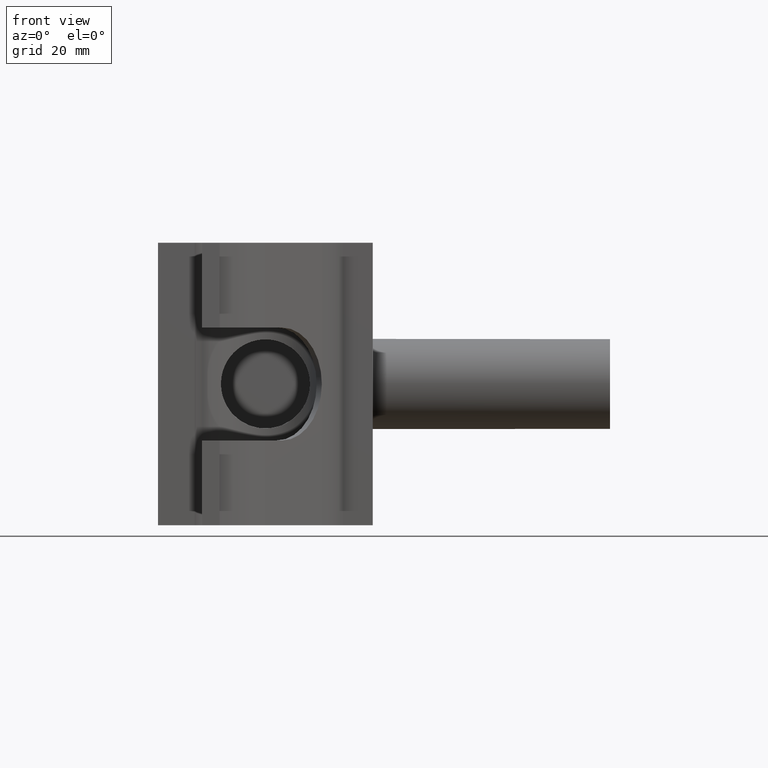
[diagram: clean part render]
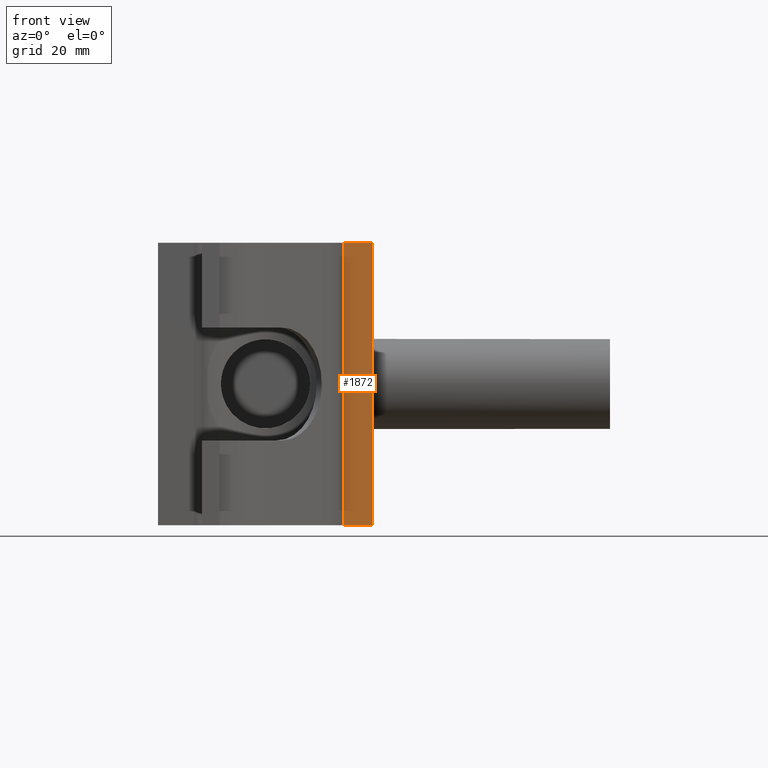
[diagram: same view with one face highlighted and labeled with its STEP entity id]
A machine part, front view. The second image highlights one B-rep face of the part: STEP entity #1872.
In plain terms, the highlighted planar face has unit normal (0, -1, 0).
Its self-contained STEP definition (entity closure, byte-faithful):
#309=FACE_OUTER_BOUND('',#443,.T.);
#443=EDGE_LOOP('',(#1665,#1666,#1667,#1668));
#586=LINE('',#3691,#731);
#587=LINE('',#3695,#732);
#588=LINE('',#3697,#733);
#589=LINE('',#3698,#734);
#731=VECTOR('',#2607,100.);
#732=VECTOR('',#2612,10.4000375000305);
#733=VECTOR('',#2613,100.);
#734=VECTOR('',#2614,10.4000375000305);
#909=VERTEX_POINT('',#3688);
#910=VERTEX_POINT('',#3690);
#911=VERTEX_POINT('',#3694);
#912=VERTEX_POINT('',#3696);
#1168=EDGE_CURVE('',#910,#909,#586,.T.);
#1170=EDGE_CURVE('',#911,#909,#587,.T.);
#1171=EDGE_CURVE('',#912,#911,#588,.T.);
#1172=EDGE_CURVE('',#910,#912,#589,.T.);
#1665=ORIENTED_EDGE('',*,*,#1170,.F.);
#1666=ORIENTED_EDGE('',*,*,#1171,.F.);
#1667=ORIENTED_EDGE('',*,*,#1172,.F.);
#1668=ORIENTED_EDGE('',*,*,#1168,.T.);
#1761=PLANE('',#2074);
#1872=ADVANCED_FACE('',(#309),#1761,.T.);
#2074=AXIS2_PLACEMENT_3D('',#3693,#2610,#2611);
#2607=DIRECTION('',(0.,0.,-1.));
#2610=DIRECTION('center_axis',(1.06751828983492E-16,-1.,0.));
#2611=DIRECTION('ref_axis',(-1.,-8.88178419700125E-17,0.));
#2612=DIRECTION('',(-1.,-1.06751828983492E-16,0.));
#2613=DIRECTION('',(0.,0.,-1.));
#2614=DIRECTION('',(1.,1.06751828983492E-16,0.));
#3688=CARTESIAN_POINT('',(27.5999624999695,-6.14999999999998,-50.));
#3690=CARTESIAN_POINT('',(27.5999624999695,-6.14999999999998,50.));
#3691=CARTESIAN_POINT('',(27.5999624999695,-6.14999999999998,50.));
#3693=CARTESIAN_POINT('Origin',(38.,-6.14999999999998,50.));
#3694=CARTESIAN_POINT('',(38.,-6.14999999999998,-50.));
#3695=CARTESIAN_POINT('',(22.9000156250174,-6.14999999999999,-50.));
#3696=CARTESIAN_POINT('',(38.,-6.14999999999998,50.));
#3697=CARTESIAN_POINT('',(38.,-6.14999999999998,50.));
#3698=CARTESIAN_POINT('',(27.5999624999695,-6.14999999999998,50.));